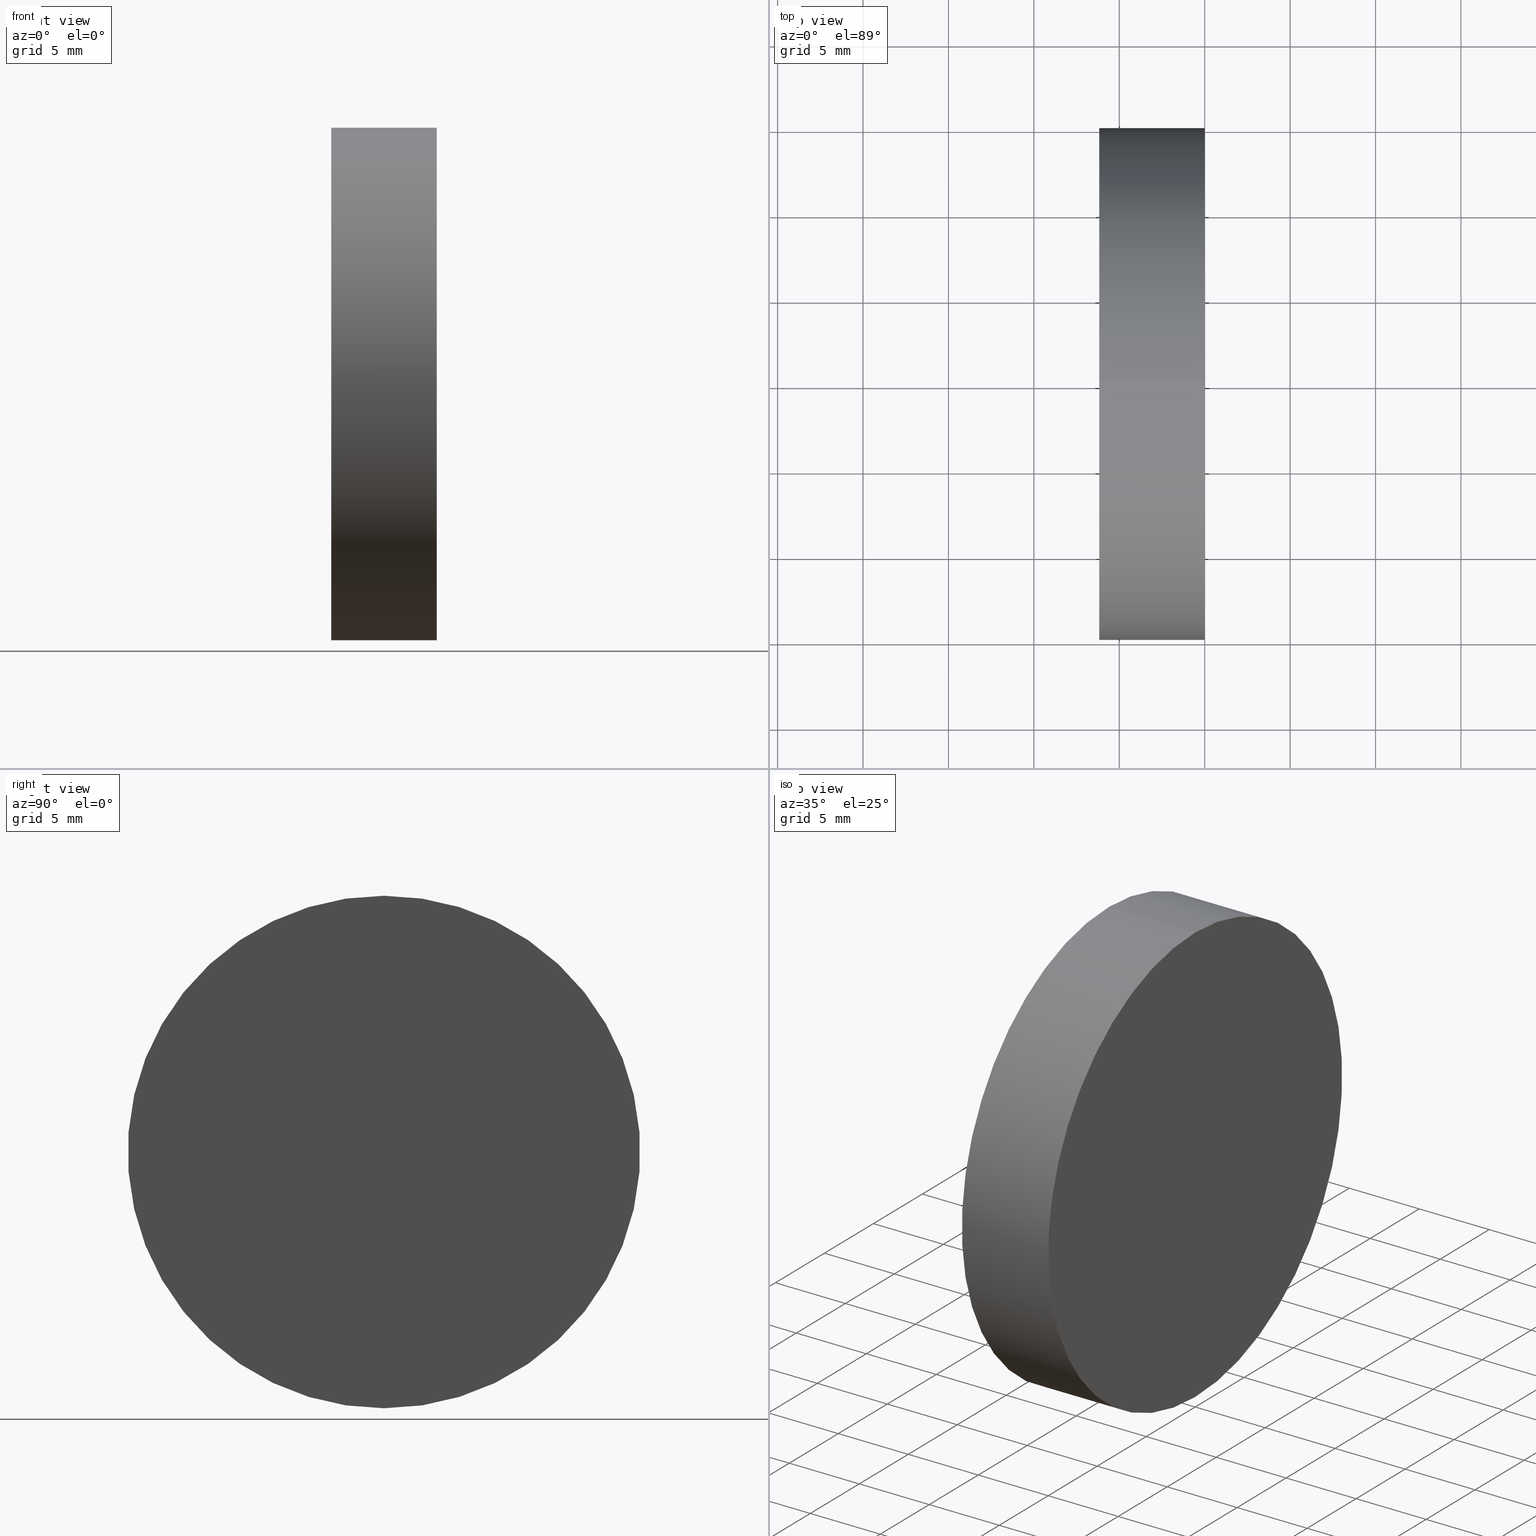
[diagram: canonical four-view strip — front | top / right | iso, engineering-drawing reading convention]
A machine part, canonical four-view strip (front | top / right | iso — engineering-drawing reading convention). The complete STEP part file that produces these views, byte-faithful:
ISO-10303-21;
HEADER;
FILE_DESCRIPTION (( 'STEP AP203' ),
    '1' );
FILE_NAME ('120354.STEP',
    '2024-05-10T06:39:44',
    ( '' ),
    ( '' ),
    'SwSTEP 2.0',
    'SolidWorks 2020',
    '' );
FILE_SCHEMA (( 'CONFIG_CONTROL_DESIGN' ));
ENDSEC;

DATA;
#1 = DATE_AND_TIME ( #37, #57 ) ;
#2 = CC_DESIGN_APPROVAL ( #4, ( #97 ) ) ;
#3 = APPROVAL_ROLE ( '' ) ;
#4 = APPROVAL ( #64, 'δָ��' ) ;
#5 = ORIENTED_EDGE ( 'NONE', *, *, #21, .F. ) ;
#6 = CIRCLE ( 'NONE', #113, 15.00000000000000000 ) ;
#7 = PRODUCT ( '120354', '120354', '', ( #129 ) ) ;
#8 = FACE_OUTER_BOUND ( 'NONE', #102, .T. ) ;
#9 = CC_DESIGN_PERSON_AND_ORGANIZATION_ASSIGNMENT ( #159, #15, ( #97 ) ) ;
#10 = DIRECTION ( 'NONE',  ( 0.000000000000000000, 0.000000000000000000, -1.000000000000000000 ) ) ;
#11 = CARTESIAN_POINT ( 'NONE',  ( 0.000000000000000000, 0.000000000000000000, 0.000000000000000000 ) ) ;
#12 = ADVANCED_BREP_SHAPE_REPRESENTATION ( '120354', ( #180, #24 ), #163 ) ;
#13 = ORIENTED_EDGE ( 'NONE', *, *, #194, .T. ) ;
#14 = CIRCLE ( 'NONE', #116, 32.50000000000000000 ) ;
#15 = PERSON_AND_ORGANIZATION_ROLE ( 'creator' ) ;
#16 = ORIENTED_EDGE ( 'NONE', *, *, #189, .T. ) ;
#17 = PERSON_AND_ORGANIZATION_ROLE ( 'design_owner' ) ;
#18 = EDGE_CURVE ( 'NONE', #29, #40, #191, .T. ) ;
#19 = DATE_AND_TIME ( #51, #108 ) ;
#20 = AXIS2_PLACEMENT_3D ( 'NONE', #28, #103, #87 ) ;
#21 = EDGE_CURVE ( 'NONE', #55, #166, #14, .T. ) ;
#22 = PERSON_AND_ORGANIZATION ( #170, #77 ) ;
#23 = PERSON_AND_ORGANIZATION ( #170, #77 ) ;
#24 = AXIS2_PLACEMENT_3D ( 'NONE', #92, #80, #110 ) ;
#25 = SECURITY_CLASSIFICATION ( '', '', #65 ) ;
#26 = DIRECTION ( 'NONE',  ( 0.000000000000000000, 0.000000000000000000, -1.000000000000000000 ) ) ;
#27 = EDGE_LOOP ( 'NONE', ( #100, #119, #5 ) ) ;
#28 = CARTESIAN_POINT ( 'NONE',  ( -34.99999988757135583, 0.000000000000000000, 0.000000000000000000 ) ) ;
#29 = VERTEX_POINT ( 'NONE', #115 ) ;
#30 = DIRECTION ( 'NONE',  ( 1.000000000000000000, -0.000000000000000000, -0.000000000000000000 ) ) ;
#31 = CIRCLE ( 'NONE', #132, 32.50000000000000000 ) ;
#32 = DESIGN_CONTEXT ( 'detailed design', #124, 'design' ) ;
#33 = APPLICATION_PROTOCOL_DEFINITION ( 'international standard', 'config_control_design', 1994, #96 ) ;
#34 = APPROVAL_ROLE ( '' ) ;
#35 = PERSON_AND_ORGANIZATION ( #170, #77 ) ;
#36 = CC_DESIGN_APPROVAL ( #63, ( #111 ) ) ;
#37 = CALENDAR_DATE ( 2024, 10, 5 ) ;
#38 = AXIS2_PLACEMENT_3D ( 'NONE', #168, #59, #44 ) ;
#39 = PERSON_AND_ORGANIZATION ( #170, #77 ) ;
#40 = VERTEX_POINT ( 'NONE', #73 ) ;
#41 = APPROVAL_PERSON_ORGANIZATION ( #187, #4, #34 ) ;
#42 = DIRECTION ( 'NONE',  ( 1.000000000000000000, -0.000000000000000000, -0.000000000000000000 ) ) ;
#43 = DIRECTION ( 'NONE',  ( 0.000000000000000000, 0.000000000000000000, -1.000000000000000000 ) ) ;
#44 = DIRECTION ( 'NONE',  ( -0.000000000000000000, 0.000000000000000000, -1.000000000000000000 ) ) ;
#45 = ORIENTED_EDGE ( 'NONE', *, *, #136, .F. ) ;
#46 = EDGE_CURVE ( 'NONE', #200, #166, #31, .T. ) ;
#47 =( NAMED_UNIT ( * ) SI_UNIT ( $, .STERADIAN. ) SOLID_ANGLE_UNIT ( ) );
#48 =( NAMED_UNIT ( * ) PLANE_ANGLE_UNIT ( ) SI_UNIT ( $, .RADIAN. ) );
#49 = CC_DESIGN_PERSON_AND_ORGANIZATION_ASSIGNMENT ( #35, #17, ( #7 ) ) ;
#50 = DIRECTION ( 'NONE',  ( 0.000000000000000000, 0.000000000000000000, -1.000000000000000000 ) ) ;
#51 = CALENDAR_DATE ( 2024, 10, 5 ) ;
#52 = PRODUCT_DEFINITION_SHAPE ( 'NONE', 'NONE',  #97 ) ;
#53 = CALENDAR_DATE ( 2024, 10, 5 ) ;
#54 = APPROVAL_DATE_TIME ( #176, #105 ) ;
#55 = VERTEX_POINT ( 'NONE', #85 ) ;
#56 = DIRECTION ( 'NONE',  ( 1.000000000000000000, -0.000000000000000000, -0.000000000000000000 ) ) ;
#57 = LOCAL_TIME ( 14, 39, 44.00000000000000000, #135 ) ;
#58 = FACE_OUTER_BOUND ( 'NONE', #178, .T. ) ;
#59 = DIRECTION ( 'NONE',  ( 1.000000000000000000, 0.000000000000000000, -0.000000000000000000 ) ) ;
#60 = DIRECTION ( 'NONE',  ( 0.000000000000000000, 0.000000000000000000, -1.000000000000000000 ) ) ;
#61 = AXIS2_PLACEMENT_3D ( 'NONE', #167, #139, #60 ) ;
#62 = APPROVAL_PERSON_ORGANIZATION ( #196, #105, #114 ) ;
#63 = APPROVAL ( #162, 'δָ��' ) ;
#64 = APPROVAL_STATUS ( 'not_yet_approved' ) ;
#65 = SECURITY_CLASSIFICATION_LEVEL ( 'unclassified' ) ;
#66 = TOROIDAL_SURFACE ( 'NONE', #152, -0.002703305825791507688, 32.50000000000000711 ) ;
#67 = COORDINATED_UNIVERSAL_TIME_OFFSET ( 8, 0, .AHEAD. ) ;
#68 = APPROVAL_STATUS ( 'not_yet_approved' ) ;
#69 = PERSON_AND_ORGANIZATION_ROLE ( 'design_supplier' ) ;
#70 = ADVANCED_FACE ( 'NONE', ( #8 ), #138, .T. ) ;
#71 = ORIENTED_EDGE ( 'NONE', *, *, #201, .T. ) ;
#72 = FACE_OUTER_BOUND ( 'NONE', #86, .T. ) ;
#73 = CARTESIAN_POINT ( 'NONE',  ( -1.208496738073276077E-15, 0.000000000000000000, -15.00000000000000000 ) ) ;
#74 = CYLINDRICAL_SURFACE ( 'NONE', #61, 15.00000000000000000 ) ;
#75 = ORIENTED_EDGE ( 'NONE', *, *, #18, .T. ) ;
#76 = CLOSED_SHELL ( 'NONE', ( #70, #98, #118, #82, #130 ) ) ;
#77 = ORGANIZATION ( 'δָ��', 'δָ��', '' ) ;
#78 = CC_DESIGN_SECURITY_CLASSIFICATION ( #25, ( #111 ) ) ;
#79 = CARTESIAN_POINT ( 'NONE',  ( 0.000000000000000000, 0.000000000000000000, -15.00000000000000000 ) ) ;
#80 = DIRECTION ( 'NONE',  ( 0.000000000000000000, 0.000000000000000000, 1.000000000000000000 ) ) ;
#81 = VECTOR ( 'NONE', #127, 1000.000000000000000 ) ;
#82 = ADVANCED_FACE ( 'NONE', ( #72 ), #74, .T. ) ;
#83 = APPROVAL_DATE_TIME ( #175, #63 ) ;
#84 = CC_DESIGN_APPROVAL ( #105, ( #25 ) ) ;
#85 = CARTESIAN_POINT ( 'NONE',  ( -6.170000000000001705, 0.000000000000000000, -15.00000000000000355 ) ) ;
#86 = EDGE_LOOP ( 'NONE', ( #45, #151, #13, #121 ) ) ;
#87 = DIRECTION ( 'NONE',  ( 0.000000000000000000, 0.000000000000000000, -1.000000000000000000 ) ) ;
#88 = DIRECTION ( 'NONE',  ( 0.000000000000000000, 1.000000000000000000, -1.224646799147353207E-16 ) ) ;
#89 = ORIENTED_EDGE ( 'NONE', *, *, #201, .F. ) ;
#90 = ORIENTED_EDGE ( 'NONE', *, *, #189, .F. ) ;
#91 = DIRECTION ( 'NONE',  ( 1.000000000000000000, -0.000000000000000000, -0.000000000000000000 ) ) ;
#92 = CARTESIAN_POINT ( 'NONE',  ( 0.000000000000000000, 0.000000000000000000, 0.000000000000000000 ) ) ;
#93 = CALENDAR_DATE ( 2024, 10, 5 ) ;
#94 = AXIS2_PLACEMENT_3D ( 'NONE', #144, #173, #183 ) ;
#95 = DATE_TIME_ROLE ( 'creation_date' ) ;
#96 = APPLICATION_CONTEXT ( 'configuration controlled 3d designs of mechanical parts and assemblies' ) ;
#97 = PRODUCT_DEFINITION ( 'δ֪', '', #111, #32 ) ;
#98 = ADVANCED_FACE ( 'NONE', ( #197 ), #66, .F. ) ;
#99 = AXIS2_PLACEMENT_3D ( 'NONE', #154, #56, #10 ) ;
#100 = ORIENTED_EDGE ( 'NONE', *, *, #184, .F. ) ;
#101 = DIRECTION ( 'NONE',  ( 0.000000000000000000, 0.000000000000000000, -1.000000000000000000 ) ) ;
#102 = EDGE_LOOP ( 'NONE', ( #71, #164, #90, #107 ) ) ;
#103 = DIRECTION ( 'NONE',  ( 1.000000000000000000, -0.000000000000000000, -0.000000000000000000 ) ) ;
#104 = LINE ( 'NONE', #169, #145 ) ;
#105 = APPROVAL ( #68, 'δָ��' ) ;
#106 = CARTESIAN_POINT ( 'NONE',  ( -6.170000000000000817, 0.000000000000000000, 0.000000000000000000 ) ) ;
#107 = ORIENTED_EDGE ( 'NONE', *, *, #194, .F. ) ;
#108 = LOCAL_TIME ( 14, 39, 44.00000000000000000, #188 ) ;
#109 = CC_DESIGN_PERSON_AND_ORGANIZATION_ASSIGNMENT ( #39, #112, ( #111 ) ) ;
#110 = DIRECTION ( 'NONE',  ( 1.000000000000000000, 0.000000000000000000, 0.000000000000000000 ) ) ;
#111 = PRODUCT_DEFINITION_FORMATION_WITH_SPECIFIED_SOURCE ( '�κ�', '', #7, .NOT_KNOWN. ) ;
#112 = PERSON_AND_ORGANIZATION_ROLE ( 'creator' ) ;
#113 = AXIS2_PLACEMENT_3D ( 'NONE', #106, #91, #172 ) ;
#114 = APPROVAL_ROLE ( '' ) ;
#115 = CARTESIAN_POINT ( 'NONE',  ( -1.208496738073276077E-15, 1.836970198721029589E-15, 15.00000000000000000 ) ) ;
#116 = AXIS2_PLACEMENT_3D ( 'NONE', #181, #120, #26 ) ;
#117 = CARTESIAN_POINT ( 'NONE',  ( -34.99999988757135583, -3.310594826671961910E-19, -0.002703305825791507688 ) ) ;
#118 = ADVANCED_FACE ( 'NONE', ( #58 ), #137, .F. ) ;
#119 = ORIENTED_EDGE ( 'NONE', *, *, #46, .T. ) ;
#120 = DIRECTION ( 'NONE',  ( -0.000000000000000000, -1.000000000000000000, -0.000000000000000000 ) ) ;
#121 = ORIENTED_EDGE ( 'NONE', *, *, #18, .F. ) ;
#122 = LINE ( 'NONE', #79, #81 ) ;
#123 = LOCAL_TIME ( 14, 39, 44.00000000000000000, #190 ) ;
#124 = APPLICATION_CONTEXT ( 'configuration controlled 3d designs of mechanical parts and assemblies' ) ;
#125 = UNCERTAINTY_MEASURE_WITH_UNIT (LENGTH_MEASURE( 1.000000000000000082E-05 ), #158, 'distance_accuracy_value', 'NONE');
#126 = CC_DESIGN_PERSON_AND_ORGANIZATION_ASSIGNMENT ( #22, #69, ( #111 ) ) ;
#127 = DIRECTION ( 'NONE',  ( 1.000000000000000000, -0.000000000000000000, -0.000000000000000000 ) ) ;
#128 = CARTESIAN_POINT ( 'NONE',  ( -1.208496738073276077E-15, 0.000000000000000000, 0.000000000000000000 ) ) ;
#129 = MECHANICAL_CONTEXT ( 'NONE', #96, 'mechanical' ) ;
#130 = ADVANCED_FACE ( 'NONE', ( #153 ), #199, .T. ) ;
#131 = SHAPE_DEFINITION_REPRESENTATION ( #52, #12 ) ;
#132 = AXIS2_PLACEMENT_3D ( 'NONE', #117, #88, #141 ) ;
#133 = CC_DESIGN_PERSON_AND_ORGANIZATION_ASSIGNMENT ( #23, #160, ( #25 ) ) ;
#134 = DATE_AND_TIME ( #53, #165 ) ;
#135 = COORDINATED_UNIVERSAL_TIME_OFFSET ( 8, 0, .AHEAD. ) ;
#136 = EDGE_CURVE ( 'NONE', #200, #29, #104, .T. ) ;
#137 = TOROIDAL_SURFACE ( 'NONE', #20, -0.002703305825791507688, 32.50000000000000711 ) ;
#138 = CYLINDRICAL_SURFACE ( 'NONE', #156, 15.00000000000000000 ) ;
#139 = DIRECTION ( 'NONE',  ( 1.000000000000000000, -0.000000000000000000, -0.000000000000000000 ) ) ;
#140 = DIRECTION ( 'NONE',  ( 1.000000000000000000, -0.000000000000000000, -0.000000000000000000 ) ) ;
#141 = DIRECTION ( 'NONE',  ( 0.000000000000000000, 1.224646799147353700E-16, 1.000000000000000000 ) ) ;
#142 = APPROVAL_PERSON_ORGANIZATION ( #148, #63, #3 ) ;
#143 = DIRECTION ( 'NONE',  ( 1.000000000000000000, -0.000000000000000000, -0.000000000000000000 ) ) ;
#144 = CARTESIAN_POINT ( 'NONE',  ( -6.170000000000000817, 0.000000000000000000, 0.000000000000000000 ) ) ;
#145 = VECTOR ( 'NONE', #30, 1000.000000000000000 ) ;
#146 = PRODUCT_RELATED_PRODUCT_CATEGORY ( 'detail', '', ( #7 ) ) ;
#147 = APPLICATION_PROTOCOL_DEFINITION ( 'international standard', 'config_control_design', 1994, #124 ) ;
#148 = PERSON_AND_ORGANIZATION ( #170, #77 ) ;
#149 = COORDINATED_UNIVERSAL_TIME_OFFSET ( 8, 0, .AHEAD. ) ;
#150 = CC_DESIGN_DATE_AND_TIME_ASSIGNMENT ( #1, #95, ( #97 ) ) ;
#151 = ORIENTED_EDGE ( 'NONE', *, *, #184, .T. ) ;
#152 = AXIS2_PLACEMENT_3D ( 'NONE', #182, #140, #43 ) ;
#153 = FACE_OUTER_BOUND ( 'NONE', #179, .T. ) ;
#154 = CARTESIAN_POINT ( 'NONE',  ( -1.208496738073276077E-15, 0.000000000000000000, 0.000000000000000000 ) ) ;
#155 = CARTESIAN_POINT ( 'NONE',  ( -2.500000000000000000, 0.000000000000000000, 0.000000000000000000 ) ) ;
#156 = AXIS2_PLACEMENT_3D ( 'NONE', #11, #42, #101 ) ;
#157 = ORIENTED_EDGE ( 'NONE', *, *, #46, .F. ) ;
#158 =( LENGTH_UNIT ( ) NAMED_UNIT ( * ) SI_UNIT ( .MILLI., .METRE. ) );
#159 = PERSON_AND_ORGANIZATION ( #170, #77 ) ;
#160 = PERSON_AND_ORGANIZATION_ROLE ( 'classification_officer' ) ;
#161 = CIRCLE ( 'NONE', #171, 15.00000000000000000 ) ;
#162 = APPROVAL_STATUS ( 'not_yet_approved' ) ;
#163 =( GEOMETRIC_REPRESENTATION_CONTEXT ( 3 ) GLOBAL_UNCERTAINTY_ASSIGNED_CONTEXT ( ( #125 ) ) GLOBAL_UNIT_ASSIGNED_CONTEXT ( ( #158, #48, #47 ) ) REPRESENTATION_CONTEXT ( 'NONE', 'WORKASPACE' ) );
#164 = ORIENTED_EDGE ( 'NONE', *, *, #136, .T. ) ;
#165 = LOCAL_TIME ( 14, 39, 44.00000000000000000, #67 ) ;
#166 = VERTEX_POINT ( 'NONE', #155 ) ;
#167 = CARTESIAN_POINT ( 'NONE',  ( 0.000000000000000000, 0.000000000000000000, 0.000000000000000000 ) ) ;
#168 = CARTESIAN_POINT ( 'NONE',  ( -6.042483690366380384E-16, 15.00000000000000000, 0.000000000000000000 ) ) ;
#169 = CARTESIAN_POINT ( 'NONE',  ( 0.000000000000000000, 1.836970198721029589E-15, 15.00000000000000000 ) ) ;
#170 = PERSON ( 'δָ��', 'δָ��', 'δָ��', ('δָ��'), ('δָ��'), ('δָ��') ) ;
#171 = AXIS2_PLACEMENT_3D ( 'NONE', #128, #143, #50 ) ;
#172 = DIRECTION ( 'NONE',  ( 0.000000000000000000, 0.000000000000000000, -1.000000000000000000 ) ) ;
#173 = DIRECTION ( 'NONE',  ( 1.000000000000000000, -0.000000000000000000, -0.000000000000000000 ) ) ;
#174 = APPROVAL_DATE_TIME ( #19, #4 ) ;
#175 = DATE_AND_TIME ( #193, #192 ) ;
#176 = DATE_AND_TIME ( #93, #123 ) ;
#177 = CC_DESIGN_DATE_AND_TIME_ASSIGNMENT ( #134, #195, ( #25 ) ) ;
#178 = EDGE_LOOP ( 'NONE', ( #157, #89, #198 ) ) ;
#179 = EDGE_LOOP ( 'NONE', ( #16, #75 ) ) ;
#180 = MANIFOLD_SOLID_BREP ( '��ת1', #76 ) ;
#181 = CARTESIAN_POINT ( 'NONE',  ( -34.99999988757135583, 0.000000000000000000, 0.002703305825791507688 ) ) ;
#182 = CARTESIAN_POINT ( 'NONE',  ( -34.99999988757135583, 0.000000000000000000, 0.000000000000000000 ) ) ;
#183 = DIRECTION ( 'NONE',  ( 0.000000000000000000, 0.000000000000000000, -1.000000000000000000 ) ) ;
#184 = EDGE_CURVE ( 'NONE', #200, #55, #6, .T. ) ;
#185 = CARTESIAN_POINT ( 'NONE',  ( -6.170000000000001705, 1.836970198721030378E-15, 15.00000000000000355 ) ) ;
#186 = CIRCLE ( 'NONE', #94, 15.00000000000000000 ) ;
#187 = PERSON_AND_ORGANIZATION ( #170, #77 ) ;
#188 = COORDINATED_UNIVERSAL_TIME_OFFSET ( 8, 0, .AHEAD. ) ;
#189 = EDGE_CURVE ( 'NONE', #40, #29, #161, .T. ) ;
#190 = COORDINATED_UNIVERSAL_TIME_OFFSET ( 8, 0, .AHEAD. ) ;
#191 = CIRCLE ( 'NONE', #99, 15.00000000000000000 ) ;
#192 = LOCAL_TIME ( 14, 39, 44.00000000000000000, #149 ) ;
#193 = CALENDAR_DATE ( 2024, 10, 5 ) ;
#194 = EDGE_CURVE ( 'NONE', #55, #40, #122, .T. ) ;
#195 = DATE_TIME_ROLE ( 'classification_date' ) ;
#196 = PERSON_AND_ORGANIZATION ( #170, #77 ) ;
#197 = FACE_OUTER_BOUND ( 'NONE', #27, .T. ) ;
#198 = ORIENTED_EDGE ( 'NONE', *, *, #21, .T. ) ;
#199 = PLANE ( 'NONE',  #38 ) ;
#200 = VERTEX_POINT ( 'NONE', #185 ) ;
#201 = EDGE_CURVE ( 'NONE', #55, #200, #186, .T. ) ;
ENDSEC;
END-ISO-10303-21;
